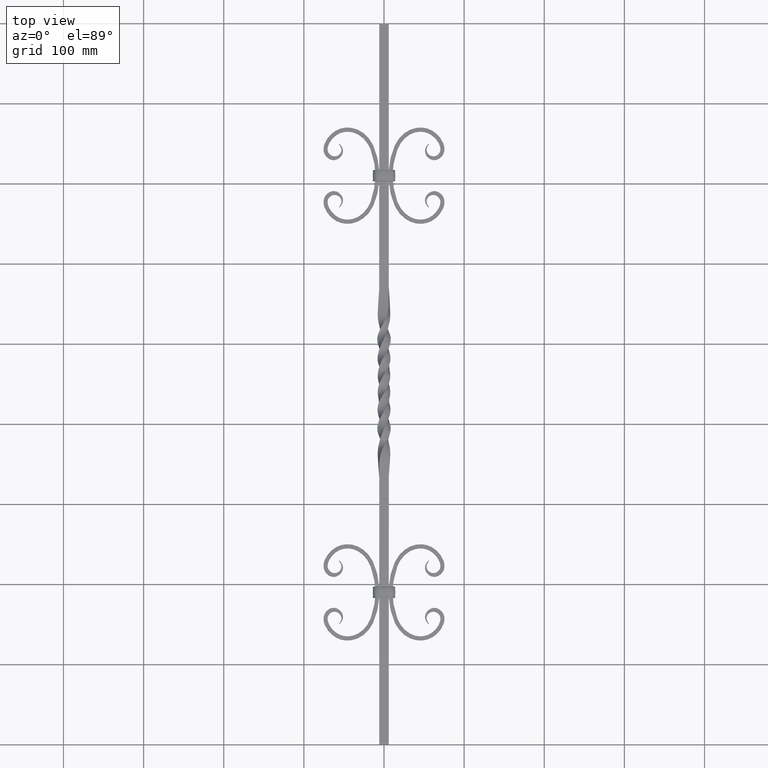
[diagram: clean part render]
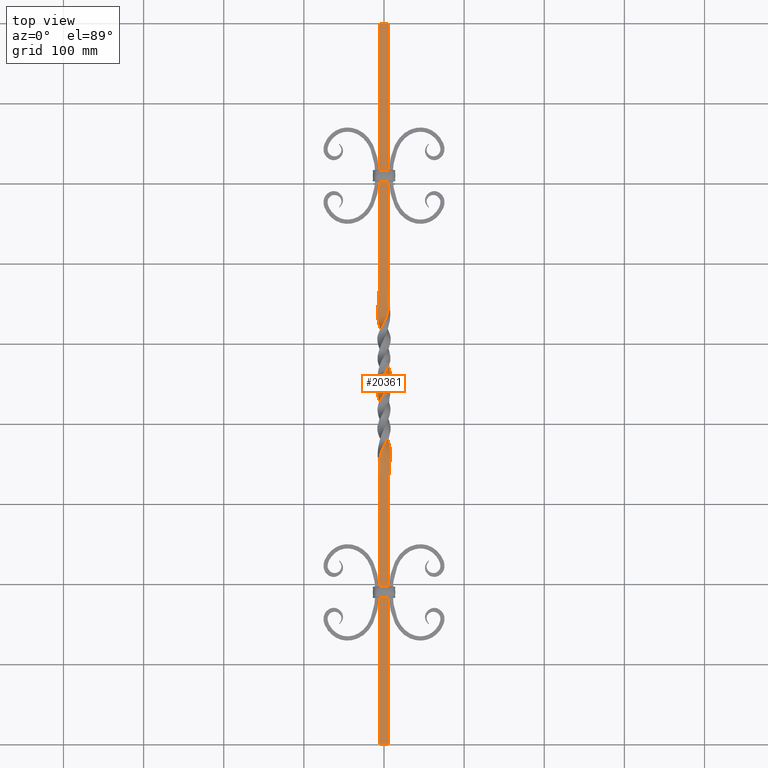
[diagram: same view with one face highlighted and labeled with its STEP entity id]
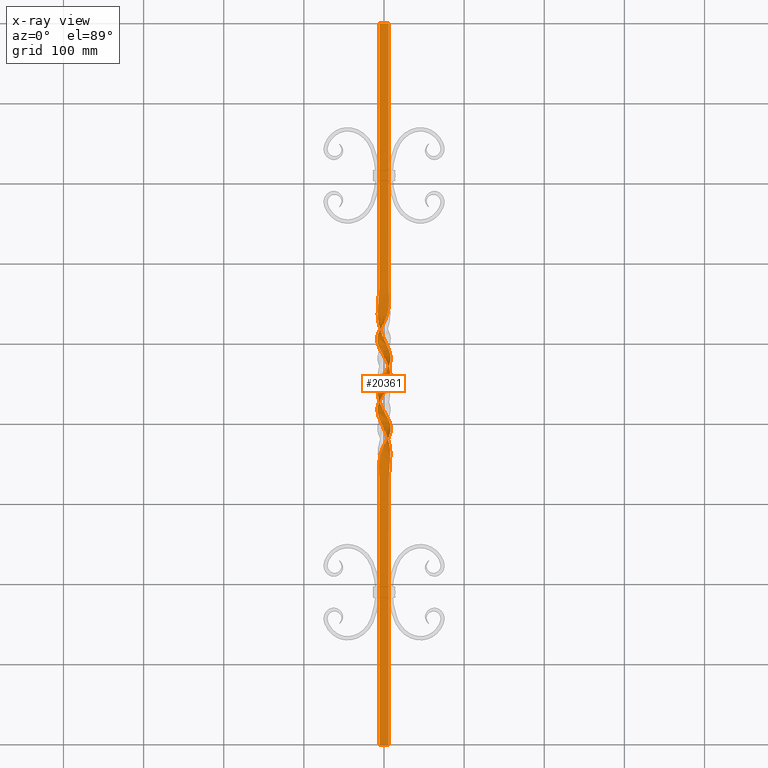
[diagram: x-ray of the same camera — body ghosted, the highlighted face saturated]
A machine part, top view. The second image highlights one B-rep face of the part: STEP entity #20361.
The next image is the same camera in x-ray: the body ghosted, the highlighted face saturated — about 0% of this face is hidden behind the body in this view.
In plain terms, the highlighted face is a freeform B-spline surface patch.
Its self-contained STEP definition (entity closure, byte-faithful):
#226 = CARTESIAN_POINT ( 'NONE',  ( -10.99545140295073864, 506.1977098420069865, -4.709606554279912594 ) ) ;
#299 = CARTESIAN_POINT ( 'NONE',  ( 5.994581729899898015, 224.9994149548762721, 5.998985872695348220 ) ) ;
#455 = CARTESIAN_POINT ( 'NONE',  ( 6.015192010897474795, 140.6266403781508814, 6.002843459772032375 ) ) ;
#536 = CARTESIAN_POINT ( 'NONE',  ( 5.985875030647223483, 618.7581486263111401, 5.924533242761494733 ) ) ;
#671 = CARTESIAN_POINT ( 'NONE',  ( -6.020221256834654255, 646.8728165821408993, 6.003784774164357074 ) ) ;
#725 = CARTESIAN_POINT ( 'NONE',  ( 6.002843459772035040, 759.3733596218468165, 6.015192010897478347 ) ) ;
#748 = CARTESIAN_POINT ( 'NONE',  ( -5.998985872695351773, 224.9994149548762721, 5.994581729899898015 ) ) ;
#751 = CARTESIAN_POINT ( 'NONE',  ( 16.02030561610884973, 393.8022901579926724, 0.9457429766359213286 ) ) ;
#828 = CARTESIAN_POINT ( 'NONE',  ( -10.18612040258586049, 532.7017317231113793, 6.783508190323913389 ) ) ;
#831 = CARTESIAN_POINT ( 'NONE',  ( -4.932763854690715988, 562.2856595492202132, 5.800247441439328355 ) ) ;
#875 = CARTESIAN_POINT ( 'NONE',  ( 6.052753540043399383, 590.5783932836166059, 6.281851131885441752 ) ) ;
#1774 = ORIENTED_EDGE ( 'NONE', *, *, #9673, .T. ) ;
#1901 = CARTESIAN_POINT ( 'NONE',  ( 4.932763854690906058, 337.7143404507785363, 5.800247441439062790 ) ) ;
#1974 = CARTESIAN_POINT ( 'NONE',  ( 2.000000132324423863, 65.62500002364483009, 6.000000100317230078 ) ) ;
#2053 = CARTESIAN_POINT ( 'NONE',  ( -1.999999954330800689, 65.62500002364473062, 6.000000159648447351 ) ) ;
#2130 = CARTESIAN_POINT ( 'NONE',  ( 2.170316241242440380, 309.4216067163825983, 6.129119403990777926 ) ) ;
#2201 = CARTESIAN_POINT ( 'NONE',  ( 10.18612040258507179, 367.2982682768877112, 6.783508190324947229 ) ) ;
#2274 = CARTESIAN_POINT ( 'NONE',  ( -1.126965326021609703, 367.2982682768879386, 9.051916331831694862 ) ) ;
#2342 = VECTOR ( 'NONE', #10574, 1000.000000000000000 ) ;
#2346 = CARTESIAN_POINT ( 'NONE',  ( -5.970597189792639092, 506.1977098420073844, -10.36495608519437361 ) ) ;
#2348 = CARTESIAN_POINT ( 'NONE',  ( -5.994581729899899791, 675.0005850451232163, 5.998985872695348220 ) ) ;
#2422 = CARTESIAN_POINT ( 'NONE',  ( -6.000000000000001776, 899.9999999999994316, 5.999999999999998224 ) ) ;
#2424 = CARTESIAN_POINT ( 'NONE',  ( -6.000000000000004441, 0.000000000000000000, 5.999999999999998224 ) ) ;
#2495 = CARTESIAN_POINT ( 'NONE',  ( -6.002843459772035040, 140.6266403781508814, 6.015192010897474795 ) ) ;
#2571 = CARTESIAN_POINT ( 'NONE',  ( 14.82313183498101949, 478.0767954600214580, 6.130841793860785316 ) ) ;
#2631 = CARTESIAN_POINT ( 'NONE',  ( 10.18612040258507179, 367.2982682768877112, 6.783508190324947229 ) ) ;
#2704 = CARTESIAN_POINT ( 'NONE',  ( 5.999999999999998224, 899.9999999999996589, 6.000000000000000000 ) ) ;
#3156 = DIRECTION ( 'NONE',  ( 1.000000000000000000, 0.000000000000000000, 4.336808689942018722E-16 ) ) ;
#3637 = CARTESIAN_POINT ( 'NONE',  ( 1.954397151625271389, 281.2418513736880641, 5.965427768018638943 ) ) ;
#3801 = CARTESIAN_POINT ( 'NONE',  ( -2.015738939510970162, 281.2418513736877230, 5.944980505390077496 ) ) ;
#3873 = CARTESIAN_POINT ( 'NONE',  ( 5.970597189793560133, 393.8022901579922177, -10.36495608519393663 ) ) ;
#3950 = CARTESIAN_POINT ( 'NONE',  ( 6.000000040986008365, 834.3749999763547294, 6.000000218979621103 ) ) ;
#4022 = CARTESIAN_POINT ( 'NONE',  ( -1.954397151625259399, 618.7581486263109127, 5.965427768018650490 ) ) ;
#4092 = CARTESIAN_POINT ( 'NONE',  ( -4.932763854690715988, 562.2856595492202132, 5.800247441439328355 ) ) ;
#4318 = CARTESIAN_POINT ( 'NONE',  ( -6.000000218979629985, 834.3749999763547294, 6.000000040986008365 ) ) ;
#4442 = CARTESIAN_POINT ( 'NONE',  ( 6.015192010897474795, 140.6266403781508814, 6.002843459772032375 ) ) ;
#4670 = CARTESIAN_POINT ( 'NONE',  ( -8.673617379884035472E-16, 0.000000000000000000, 6.000000000000000000 ) ) ;
#5190 = EDGE_LOOP ( 'NONE', ( #16337, #8440, #12228, #1774 ) ) ;
#5429 = CARTESIAN_POINT ( 'NONE',  ( 2.009180187340973589, 140.6266403781507677, 6.006959643480530353 ) ) ;
#5510 = CARTESIAN_POINT ( 'NONE',  ( 5.998985872695348220, 675.0005850451232163, 5.994581729899896239 ) ) ;
#5583 = CARTESIAN_POINT ( 'NONE',  ( 2.222577009395982905, 562.2856595492204406, 5.221925050273584112 ) ) ;
#5730 = CARTESIAN_POINT ( 'NONE',  ( -5.924533242761499174, 618.7581486263111401, 5.985875030647223483 ) ) ;
#5807 = CARTESIAN_POINT ( 'NONE',  ( -5.994581729899899791, 675.0005850451232163, 5.998985872695348220 ) ) ;
#5844 = CARTESIAN_POINT ( 'NONE',  ( -6.000000000000001776, 899.9999999999998863, 5.999999999999998224 ) ) ;
#5955 = CARTESIAN_POINT ( 'NONE',  ( -5.800247441439065454, 337.7143404507785363, 4.932763854690906058 ) ) ;
#6027 = CARTESIAN_POINT ( 'NONE',  ( -1.355093422647369206, 562.2856595492197584, 5.511086245856461119 ) ) ;
#6234 = CARTESIAN_POINT ( 'NONE',  ( 5.924533242761508056, 281.2418513736877230, 5.985875030647204831 ) ) ;
#6918 = EDGE_CURVE ( 'NONE', #11750, #13106, #21473, .T. ) ;
#7088 = CARTESIAN_POINT ( 'NONE',  ( 6.020221256834645374, 253.1271834178583333, 6.003784774164358851 ) ) ;
#7163 = CARTESIAN_POINT ( 'NONE',  ( 2.012219246501645298, 253.1271834178585607, 6.009263601721126946 ) ) ;
#7315 = CARTESIAN_POINT ( 'NONE',  ( 2.015738939510986594, 618.7581486263113675, 5.944980505390070391 ) ) ;
#7390 = CARTESIAN_POINT ( 'NONE',  ( 2.000000000000001776, 899.9999999999998863, 6.000000000000000000 ) ) ;
#7462 = CARTESIAN_POINT ( 'NONE',  ( -4.529577538282598681, 532.7017317231111520, 7.917712261077890723 ) ) ;
#7610 = CARTESIAN_POINT ( 'NONE',  ( -2.000000000000003553, 899.9999999999992042, 6.000000000000001776 ) ) ;
#7612 = CARTESIAN_POINT ( 'NONE',  ( 14.82313183498101949, 478.0767954600214580, 6.130841793860785316 ) ) ;
#7689 = CARTESIAN_POINT ( 'NONE',  ( -11.17307251028036141, 449.9999999999993747, 11.17307251028020332 ) ) ;
#7764 = CARTESIAN_POINT ( 'NONE',  ( -6.783508190324950782, 367.2982682768877112, 10.18612040258507001 ) ) ;
#7884 = CARTESIAN_POINT ( 'NONE',  ( 6.783508190323913389, 532.7017317231113793, 10.18612040258585516 ) ) ;
#7957 = VECTOR ( 'NONE', #3156, 1000.000000000000000 ) ;
#8062 = CARTESIAN_POINT ( 'NONE',  ( -6.000000000000004441, 0.000000000000000000, 5.999999999999998224 ) ) ;
#8440 = ORIENTED_EDGE ( 'NONE', *, *, #13086, .F. ) ;
#8811 = CARTESIAN_POINT ( 'NONE',  ( 5.999999999999998224, 899.9999999999994316, 5.999999999999998224 ) ) ;
#8891 = CARTESIAN_POINT ( 'NONE',  ( 1.999999954330795138, 834.3749999763700771, 6.000000159648414488 ) ) ;
#8965 = CARTESIAN_POINT ( 'NONE',  ( 6.281851131885392014, 309.4216067163823709, 6.052753540043468661 ) ) ;
#9114 = CARTESIAN_POINT ( 'NONE',  ( 6.002843459772035040, 759.3733596218468165, 6.015192010897478347 ) ) ;
#9271 = CARTESIAN_POINT ( 'NONE',  ( -6.130841793859691968, 421.9232045399772915, -14.82313183498177622 ) ) ;
#9345 = CARTESIAN_POINT ( 'NONE',  ( -2.170316241242501221, 590.5783932836166059, 6.129119403990750392 ) ) ;
#9425 = CARTESIAN_POINT ( 'NONE',  ( -2.012219246501654180, 646.8728165821413540, 6.009263601721123393 ) ) ;
#9427 = CARTESIAN_POINT ( 'NONE',  ( -11.17307251028036141, 449.9999999999993747, 11.17307251028020332 ) ) ;
#9467 = EDGE_CURVE ( 'NONE', #13451, #21912, #21721, .T. ) ;
#9478 = CARTESIAN_POINT ( 'NONE',  ( 5.999999999999998224, 899.9999999999996589, 6.000000000000000000 ) ) ;
#9497 = CARTESIAN_POINT ( 'NONE',  ( -6.281851131885444417, 590.5783932836166059, 6.052753540043399383 ) ) ;
#9553 = CARTESIAN_POINT ( 'NONE',  ( 5.999999999999998224, 0.000000000000000000, 6.000000000000000000 ) ) ;
#9673 = EDGE_CURVE ( 'NONE', #11750, #13451, #11288, .T. ) ;
#10558 = CARTESIAN_POINT ( 'NONE',  ( 3.724357503426690474, 449.9999999999993747, 11.17307251028030635 ) ) ;
#10574 = DIRECTION ( 'NONE',  ( 1.000000000000000000, -2.775557561562891982E-14, 4.336808689942018722E-16 ) ) ;
#10635 = CARTESIAN_POINT ( 'NONE',  ( -2.000000000000003553, 0.000000000000000000, 6.000000000000001776 ) ) ;
#10709 = CARTESIAN_POINT ( 'NONE',  ( 1.126965326020657354, 532.7017317231116067, 9.051916331831879603 ) ) ;
#11013 = CARTESIAN_POINT ( 'NONE',  ( 10.99545140295120405, 393.8022901579927861, -4.709606554279001323 ) ) ;
#11015 = CARTESIAN_POINT ( 'NONE',  ( -5.998985872695351773, 224.9994149548762721, 5.994581729899898015 ) ) ;
#11088 = CARTESIAN_POINT ( 'NONE',  ( -2.009180187340975365, 759.3733596218490902, 6.006959643480523248 ) ) ;
#11143 = CARTESIAN_POINT ( 'NONE',  ( 6.020221256834645374, 253.1271834178583333, 6.003784774164358851 ) ) ;
#11166 = CARTESIAN_POINT ( 'NONE',  ( -1.996725862368153859, 675.0005850451227616, 5.997517825096868371 ) ) ;
#11168 = CARTESIAN_POINT ( 'NONE',  ( -6.000000040986021688, 65.62500002364458851, 6.000000218979624655 ) ) ;
#11225 = CARTESIAN_POINT ( 'NONE',  ( 5.800247441439328355, 562.2856595492202132, 4.932763854690712435 ) ) ;
#11288 = B_SPLINE_CURVE_WITH_KNOTS ( 'NONE', 3,
 ( #21405, #19624, #19765, #2348, #16423, #16344, #9497, #831, #18026, #16270, #7612, #9427, #9271, #751, #21565, #21332, #12836, #12759, #17803, #11015, #2495, #11168, #2424 ),
 .UNSPECIFIED., .F., .F.,
 ( 4, 1, 1, 1, 1, 1, 1, 1, 1, 1, 1, 1, 1, 1, 1, 1, 1, 1, 1, 1, 4 ),
 ( 0.000000000000000000, 0.2150539006143591392, 0.2457758864164102386, 0.2764978722184615600, 0.3072198580205131035, 0.3379418438225643140, 0.3687168302277795684, 0.4004128416727378292, 0.4330298781574392075, 0.4665149390787198813, 0.5000000000000004441, 0.5334850609212808958, 0.5669701218425615696, 0.5995871583272629479, 0.6312831697722209867, 0.6620581561774361301, 0.6927801419794874516, 0.7235021277815387730, 0.7542241135835899835, 0.7849460993856411939, 1.000000000000000000 ),
 .UNSPECIFIED. ) ;
#11384 = CARTESIAN_POINT ( 'NONE',  ( 6.000000040986008365, 834.3749999763547294, 6.000000218979621103 ) ) ;
#11750 = VERTEX_POINT ( 'NONE', #5844 ) ;
#12198 = B_SPLINE_SURFACE_WITH_KNOTS ( 'NONE', 3, 3, ( 
 ( #12463, #17726, #455, #299, #7088, #12543, #8965, #1901, #2201, #13961, #20959, #14040, #14113, #15836, #17576, #14268, #19173, #536, #15754, #5510, #9114, #3950, #8811 ),
 ( #17497, #1974, #5429, #21037, #7163, #3637, #2130, #19243, #12304, #3873, #14192, #10558, #15909, #226, #10709, #5583, #17652, #7315, #19394, #21101, #15976, #8891, #7390 ),
 ( #10635, #2053, #19468, #21176, #12387, #3801, #14415, #18100, #2274, #11013, #16123, #21478, #19763, #2346, #7462, #6027, #9345, #4022, #9425, #11166, #11088, #16268, #7610 ),
 ( #19692, #21403, #18024, #748, #17945, #14337, #14640, #5955, #7764, #19543, #12756, #7689, #2571, #16051, #828, #4092, #19843, #5730, #671, #5807, #12908, #4318, #2422 ) ),
 .UNSPECIFIED., .F., .F., .F.,
 ( 4, 4 ),
 ( 4, 1, 1, 1, 1, 1, 1, 1, 1, 1, 1, 1, 1, 1, 1, 1, 1, 1, 1, 1, 4 ),
 ( 0.000000000000000000, 1.000000000000000000 ),
 ( 0.000000000000000000, 0.2150539006143588061, 0.2457758864164100443, 0.2764978722184612825, 0.3072198580205126039, 0.3379418438225638699, 0.3687168302277790133, 0.4004128416727371076, 0.4330298781574384304, 0.4665149390787190486, 0.4999999999999996114, 0.5334850609212801187, 0.5669701218425607925, 0.5995871583272621708, 0.6312831697722204316, 0.6620581561774356860, 0.6927801419794868965, 0.7235021277815384400, 0.7542241135835897614, 0.7849460993856408608, 1.000000000000000000 ),
 .UNSPECIFIED. ) ;
#12228 = ORIENTED_EDGE ( 'NONE', *, *, #6918, .F. ) ;
#12304 = CARTESIAN_POINT ( 'NONE',  ( 4.529577538281730043, 367.2982682768883933, 7.917712261078329483 ) ) ;
#12387 = CARTESIAN_POINT ( 'NONE',  ( -1.995782763831361661, 253.1271834178584470, 6.014742429277888824 ) ) ;
#12463 = CARTESIAN_POINT ( 'NONE',  ( 5.999999999999998224, 0.000000000000000000, 5.999999999999998224 ) ) ;
#12543 = CARTESIAN_POINT ( 'NONE',  ( 5.924533242761508056, 281.2418513736877230, 5.985875030647204831 ) ) ;
#12756 = CARTESIAN_POINT ( 'NONE',  ( -6.130841793859691968, 421.9232045399772915, -14.82313183498177622 ) ) ;
#12759 = CARTESIAN_POINT ( 'NONE',  ( -5.985875030647208384, 281.2418513736877230, 5.924533242761508056 ) ) ;
#12836 = CARTESIAN_POINT ( 'NONE',  ( -6.052753540043471325, 309.4216067163823709, 6.281851131885392014 ) ) ;
#12908 = CARTESIAN_POINT ( 'NONE',  ( -6.015192010897481900, 759.3733596218468165, 6.002843459772035040 ) ) ;
#12965 = CARTESIAN_POINT ( 'NONE',  ( 0.9457429766359169987, 393.8022901579926724, -16.02030561610884263 ) ) ;
#13086 = EDGE_CURVE ( 'NONE', #13106, #21912, #18954, .T. ) ;
#13106 = VERTEX_POINT ( 'NONE', #2704 ) ;
#13115 = CARTESIAN_POINT ( 'NONE',  ( 5.998985872695348220, 675.0005850451232163, 5.994581729899896239 ) ) ;
#13451 = VERTEX_POINT ( 'NONE', #8062 ) ;
#13961 = CARTESIAN_POINT ( 'NONE',  ( 0.9457429766359169987, 393.8022901579926724, -16.02030561610884263 ) ) ;
#14040 = CARTESIAN_POINT ( 'NONE',  ( 11.17307251028020509, 449.9999999999993747, 11.17307251028035608 ) ) ;
#14113 = CARTESIAN_POINT ( 'NONE',  ( 6.130841793860779099, 478.0767954600214580, -14.82313183498102127 ) ) ;
#14192 = CARTESIAN_POINT ( 'NONE',  ( -11.92570182127442813, 421.9232045399781441, -0.8538160824207918775 ) ) ;
#14268 = CARTESIAN_POINT ( 'NONE',  ( 5.800247441439328355, 562.2856595492202132, 4.932763854690712435 ) ) ;
#14337 = CARTESIAN_POINT ( 'NONE',  ( -5.985875030647208384, 281.2418513736877230, 5.924533242761508056 ) ) ;
#14415 = CARTESIAN_POINT ( 'NONE',  ( -1.941218649400519247, 309.4216067163823709, 6.205485267938084526 ) ) ;
#14547 = CARTESIAN_POINT ( 'NONE',  ( 6.281851131885392014, 309.4216067163823709, 6.052753540043468661 ) ) ;
#14640 = CARTESIAN_POINT ( 'NONE',  ( -6.052753540043471325, 309.4216067163823709, 6.281851131885392014 ) ) ;
#14698 = CARTESIAN_POINT ( 'NONE',  ( 5.994581729899898015, 224.9994149548762721, 5.998985872695348220 ) ) ;
#15170 = CARTESIAN_POINT ( 'NONE',  ( 5.999999999999998224, 0.000000000000000000, 6.000000000000000000 ) ) ;
#15754 = CARTESIAN_POINT ( 'NONE',  ( 6.003784774164357074, 646.8728165821408993, 6.020221256834650703 ) ) ;
#15836 = CARTESIAN_POINT ( 'NONE',  ( -16.02030561610882842, 506.1977098420065317, 0.9457429766345495370 ) ) ;
#15909 = CARTESIAN_POINT ( 'NONE',  ( 9.028271807567525897, 478.0767954600216854, -7.838473958700416411 ) ) ;
#15976 = CARTESIAN_POINT ( 'NONE',  ( 1.996831636215528283, 759.3733596218490902, 6.011075827189000798 ) ) ;
#16051 = CARTESIAN_POINT ( 'NONE',  ( -0.9457429766345438749, 506.1977098420065317, -16.02030561610882842 ) ) ;
#16123 = CARTESIAN_POINT ( 'NONE',  ( -9.028271807567055163, 421.9232045399776325, -7.838473958701285049 ) ) ;
#16268 = CARTESIAN_POINT ( 'NONE',  ( -2.000000132324420754, 834.3749999763623464, 6.000000100317201657 ) ) ;
#16270 = CARTESIAN_POINT ( 'NONE',  ( -0.9457429766345438749, 506.1977098420065317, -16.02030561610882842 ) ) ;
#16324 = CARTESIAN_POINT ( 'NONE',  ( 6.130841793860779099, 478.0767954600214580, -14.82313183498102127 ) ) ;
#16337 = ORIENTED_EDGE ( 'NONE', *, *, #9467, .T. ) ;
#16344 = CARTESIAN_POINT ( 'NONE',  ( -5.924533242761499174, 618.7581486263111401, 5.985875030647223483 ) ) ;
#16423 = CARTESIAN_POINT ( 'NONE',  ( -6.020221256834654255, 646.8728165821408993, 6.003784774164357074 ) ) ;
#17497 = CARTESIAN_POINT ( 'NONE',  ( 2.000000000000001776, 0.000000000000000000, 6.000000000000000000 ) ) ;
#17576 = CARTESIAN_POINT ( 'NONE',  ( 6.783508190323913389, 532.7017317231113793, 10.18612040258585516 ) ) ;
#17652 = CARTESIAN_POINT ( 'NONE',  ( 1.941218649400455964, 590.5783932836163785, 6.205485267938098737 ) ) ;
#17726 = CARTESIAN_POINT ( 'NONE',  ( 6.000000218979624655, 65.62500002364458851, 6.000000040986004812 ) ) ;
#17803 = CARTESIAN_POINT ( 'NONE',  ( -6.003784774164363292, 253.1271834178583333, 6.020221256834645374 ) ) ;
#17945 = CARTESIAN_POINT ( 'NONE',  ( -6.003784774164363292, 253.1271834178583333, 6.020221256834645374 ) ) ;
#18024 = CARTESIAN_POINT ( 'NONE',  ( -6.002843459772035040, 140.6266403781508814, 6.015192010897474795 ) ) ;
#18026 = CARTESIAN_POINT ( 'NONE',  ( -10.18612040258586049, 532.7017317231113793, 6.783508190323913389 ) ) ;
#18100 = CARTESIAN_POINT ( 'NONE',  ( -2.222577009395744430, 337.7143404507787636, 5.221925050273631186 ) ) ;
#18148 = CARTESIAN_POINT ( 'NONE',  ( 6.000000218979624655, 65.62500002364458851, 6.000000040986004812 ) ) ;
#18231 = CARTESIAN_POINT ( 'NONE',  ( 6.003784774164357074, 646.8728165821408993, 6.020221256834650703 ) ) ;
#18954 = B_SPLINE_CURVE_WITH_KNOTS ( 'NONE', 3,
 ( #9478, #11384, #725, #13115, #18231, #19900, #875, #11225, #7884, #19672, #16324, #21459, #21542, #12965, #2631, #19975, #14547, #6234, #11143, #14698, #4442, #18148, #9553 ),
 .UNSPECIFIED., .F., .F.,
 ( 4, 1, 1, 1, 1, 1, 1, 1, 1, 1, 1, 1, 1, 1, 1, 1, 1, 1, 1, 1, 4 ),
 ( 0.000000000000000000, 0.2150539006143591392, 0.2457758864164102386, 0.2764978722184615600, 0.3072198580205131035, 0.3379418438225643140, 0.3687168302277795684, 0.4004128416727378292, 0.4330298781574392075, 0.4665149390787198813, 0.5000000000000004441, 0.5334850609212808958, 0.5669701218425615696, 0.5995871583272629479, 0.6312831697722209867, 0.6620581561774361301, 0.6927801419794874516, 0.7235021277815387730, 0.7542241135835899835, 0.7849460993856411939, 1.000000000000000000 ),
 .UNSPECIFIED. ) ;
#19173 = CARTESIAN_POINT ( 'NONE',  ( 6.052753540043399383, 590.5783932836166059, 6.281851131885441752 ) ) ;
#19243 = CARTESIAN_POINT ( 'NONE',  ( 1.355093422647587920, 337.7143404507791047, 5.511086245856342991 ) ) ;
#19259 = CARTESIAN_POINT ( 'NONE',  ( -8.673617379884035472E-16, 900.0000000000001137, 6.000000000000000000 ) ) ;
#19394 = CARTESIAN_POINT ( 'NONE',  ( 1.995782763831353890, 646.8728165821422635, 6.014742429277889713 ) ) ;
#19468 = CARTESIAN_POINT ( 'NONE',  ( -1.996831636215541383, 140.6266403781516487, 6.011075827189011456 ) ) ;
#19543 = CARTESIAN_POINT ( 'NONE',  ( 16.02030561610884973, 393.8022901579926724, 0.9457429766359213286 ) ) ;
#19624 = CARTESIAN_POINT ( 'NONE',  ( -6.000000218979629985, 834.3749999763547294, 6.000000040986008365 ) ) ;
#19672 = CARTESIAN_POINT ( 'NONE',  ( -16.02030561610882842, 506.1977098420065317, 0.9457429766345495370 ) ) ;
#19692 = CARTESIAN_POINT ( 'NONE',  ( -6.000000000000001776, 0.000000000000000000, 5.999999999999998224 ) ) ;
#19763 = CARTESIAN_POINT ( 'NONE',  ( 11.92570182127428602, 478.0767954600210032, -0.8538160824198143262 ) ) ;
#19765 = CARTESIAN_POINT ( 'NONE',  ( -6.015192010897481900, 759.3733596218468165, 6.002843459772035040 ) ) ;
#19843 = CARTESIAN_POINT ( 'NONE',  ( -6.281851131885444417, 590.5783932836166059, 6.052753540043399383 ) ) ;
#19900 = CARTESIAN_POINT ( 'NONE',  ( 5.985875030647223483, 618.7581486263111401, 5.924533242761494733 ) ) ;
#19975 = CARTESIAN_POINT ( 'NONE',  ( 4.932763854690906058, 337.7143404507785363, 5.800247441439062790 ) ) ;
#20361 = ADVANCED_FACE ( 'NONE', ( #22305 ), #12198, .F. ) ;
#20959 = CARTESIAN_POINT ( 'NONE',  ( -14.82313183498177089, 421.9232045399772915, 6.130841793859697297 ) ) ;
#21037 = CARTESIAN_POINT ( 'NONE',  ( 1.996725862368152082, 224.9994149548763289, 5.997517825096863042 ) ) ;
#21101 = CARTESIAN_POINT ( 'NONE',  ( 2.001130005163602288, 675.0005850451235574, 5.996049777498383193 ) ) ;
#21176 = CARTESIAN_POINT ( 'NONE',  ( -2.001130005163602288, 224.9994149548761584, 5.996049777498383193 ) ) ;
#21332 = CARTESIAN_POINT ( 'NONE',  ( -5.800247441439065454, 337.7143404507785363, 4.932763854690906058 ) ) ;
#21403 = CARTESIAN_POINT ( 'NONE',  ( -6.000000040986021688, 65.62500002364458851, 6.000000218979624655 ) ) ;
#21405 = CARTESIAN_POINT ( 'NONE',  ( -6.000000000000001776, 899.9999999999998863, 5.999999999999998224 ) ) ;
#21459 = CARTESIAN_POINT ( 'NONE',  ( 11.17307251028020509, 449.9999999999993747, 11.17307251028035608 ) ) ;
#21473 = LINE ( 'NONE', #19259, #2342 ) ;
#21478 = CARTESIAN_POINT ( 'NONE',  ( -3.724357503426842797, 449.9999999999996021, 11.17307251028025838 ) ) ;
#21542 = CARTESIAN_POINT ( 'NONE',  ( -14.82313183498177089, 421.9232045399772915, 6.130841793859697297 ) ) ;
#21565 = CARTESIAN_POINT ( 'NONE',  ( -6.783508190324950782, 367.2982682768877112, 10.18612040258507001 ) ) ;
#21721 = LINE ( 'NONE', #4670, #7957 ) ;
#21912 = VERTEX_POINT ( 'NONE', #15170 ) ;
#22305 = FACE_OUTER_BOUND ( 'NONE', #5190, .T. ) ;